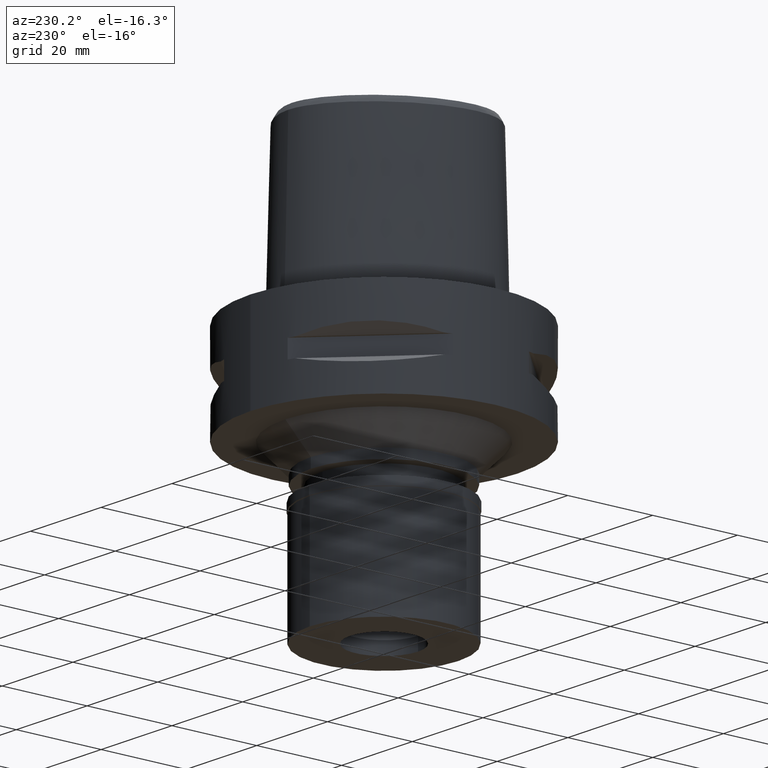
[diagram: clean part render]
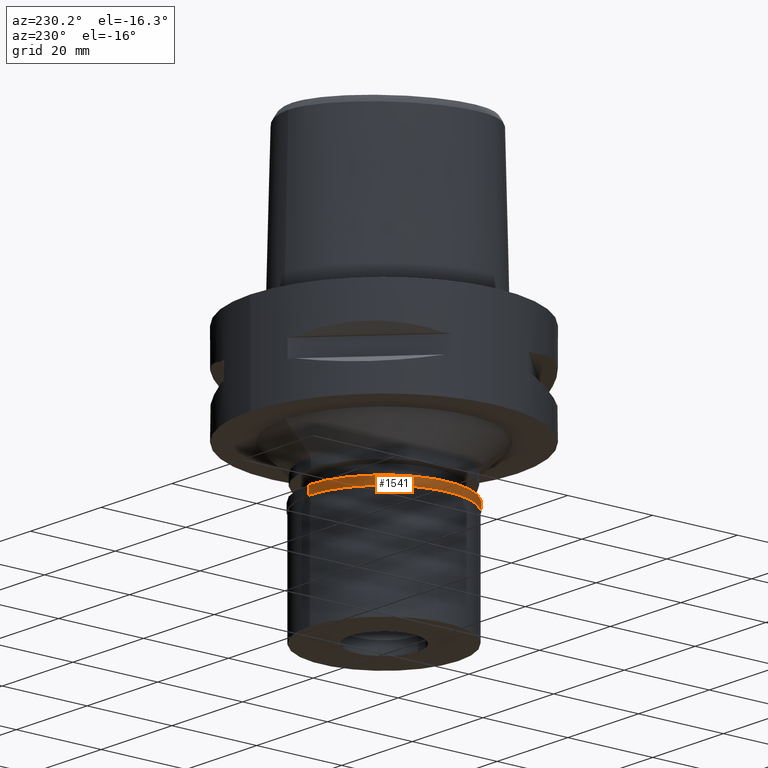
[diagram: same view with one face highlighted and labeled with its STEP entity id]
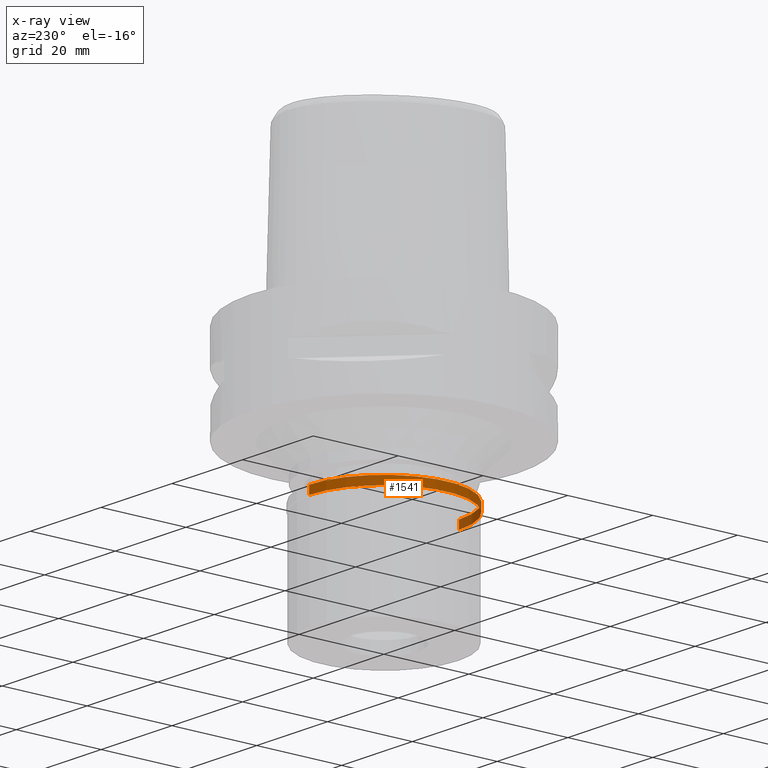
[diagram: x-ray of the same camera — body ghosted, the highlighted face saturated]
A machine part, auxiliary view. The second image highlights one B-rep face of the part: STEP entity #1541.
The next image is the same camera in x-ray: the body ghosted, the highlighted face saturated — about 7% of this face is hidden behind the body in this view.
In plain terms, the highlighted cylindrical surface (partial cylindrical patch) has radius 17.65 mm, axis along (0, 0, -1).
Its self-contained STEP definition (entity closure, byte-faithful):
#6 = CARTESIAN_POINT ( 'NONE',  ( 0.0000000000000000000, 17.64999999999999858, 0.0000000000000000000 ) ) ;
#182 = EDGE_LOOP ( 'NONE', ( #4158, #2385, #3083, #546 ) ) ;
#405 = LINE ( 'NONE', #1150, #4335 ) ;
#456 = DIRECTION ( 'NONE',  ( 0.0000000000000000000, 0.0000000000000000000, -1.000000000000000000 ) ) ;
#466 = DIRECTION ( 'NONE',  ( 0.0000000000000000000, 0.0000000000000000000, -1.000000000000000000 ) ) ;
#546 = ORIENTED_EDGE ( 'NONE', *, *, #4106, .T. ) ;
#780 = VERTEX_POINT ( 'NONE', #6 ) ;
#911 = VERTEX_POINT ( 'NONE', #1874 ) ;
#932 = VERTEX_POINT ( 'NONE', #1539 ) ;
#953 = CYLINDRICAL_SURFACE ( 'NONE', #4637, 17.64999999999999858 ) ;
#1041 = AXIS2_PLACEMENT_3D ( 'NONE', #3778, #466, #3441 ) ;
#1150 = CARTESIAN_POINT ( 'NONE',  ( 0.0000000000000000000, 17.64999999999999858, 0.0000000000000000000 ) ) ;
#1203 = CARTESIAN_POINT ( 'NONE',  ( 0.0000000000000000000, -17.64999999999999858, 0.0000000000000000000 ) ) ;
#1539 = CARTESIAN_POINT ( 'NONE',  ( 0.0000000000000000000, 17.64999999999999858, -1.949999999999999956 ) ) ;
#1541 = ADVANCED_FACE ( 'NONE', ( #2508 ), #953, .T. ) ;
#1874 = CARTESIAN_POINT ( 'NONE',  ( 0.0000000000000000000, -17.64999999999999858, -1.949999999999999956 ) ) ;
#1939 = EDGE_CURVE ( 'NONE', #2674, #911, #4561, .T. ) ;
#1988 = DIRECTION ( 'NONE',  ( 0.0000000000000000000, 0.0000000000000000000, -1.000000000000000000 ) ) ;
#2168 = CIRCLE ( 'NONE', #1041, 17.64999999999999858 ) ;
#2325 = VECTOR ( 'NONE', #1988, 1000.000000000000000 ) ;
#2385 = ORIENTED_EDGE ( 'NONE', *, *, #1939, .F. ) ;
#2412 = CARTESIAN_POINT ( 'NONE',  ( 0.0000000000000000000, 0.0000000000000000000, 0.0000000000000000000 ) ) ;
#2508 = FACE_OUTER_BOUND ( 'NONE', #182, .T. ) ;
#2562 = DIRECTION ( 'NONE',  ( 0.0000000000000000000, 1.000000000000000000, 0.0000000000000000000 ) ) ;
#2674 = VERTEX_POINT ( 'NONE', #1203 ) ;
#3083 = ORIENTED_EDGE ( 'NONE', *, *, #3587, .T. ) ;
#3118 = AXIS2_PLACEMENT_3D ( 'NONE', #4323, #3235, #2562 ) ;
#3235 = DIRECTION ( 'NONE',  ( 0.0000000000000000000, 0.0000000000000000000, 1.000000000000000000 ) ) ;
#3441 = DIRECTION ( 'NONE',  ( 0.0000000000000000000, -1.000000000000000000, 0.0000000000000000000 ) ) ;
#3587 = EDGE_CURVE ( 'NONE', #2674, #780, #2168, .T. ) ;
#3724 = CIRCLE ( 'NONE', #3118, 17.64999999999999858 ) ;
#3778 = CARTESIAN_POINT ( 'NONE',  ( 0.0000000000000000000, 0.0000000000000000000, 0.0000000000000000000 ) ) ;
#3876 = DIRECTION ( 'NONE',  ( 0.0000000000000000000, -1.000000000000000000, 0.0000000000000000000 ) ) ;
#3972 = DIRECTION ( 'NONE',  ( 0.0000000000000000000, 0.0000000000000000000, -1.000000000000000000 ) ) ;
#4106 = EDGE_CURVE ( 'NONE', #780, #932, #405, .T. ) ;
#4158 = ORIENTED_EDGE ( 'NONE', *, *, #4340, .T. ) ;
#4323 = CARTESIAN_POINT ( 'NONE',  ( 0.0000000000000000000, 0.0000000000000000000, -1.949999999999999956 ) ) ;
#4335 = VECTOR ( 'NONE', #456, 1000.000000000000000 ) ;
#4340 = EDGE_CURVE ( 'NONE', #932, #911, #3724, .T. ) ;
#4464 = CARTESIAN_POINT ( 'NONE',  ( 0.0000000000000000000, -17.64999999999999858, 0.0000000000000000000 ) ) ;
#4561 = LINE ( 'NONE', #4464, #2325 ) ;
#4637 = AXIS2_PLACEMENT_3D ( 'NONE', #2412, #3972, #3876 ) ;